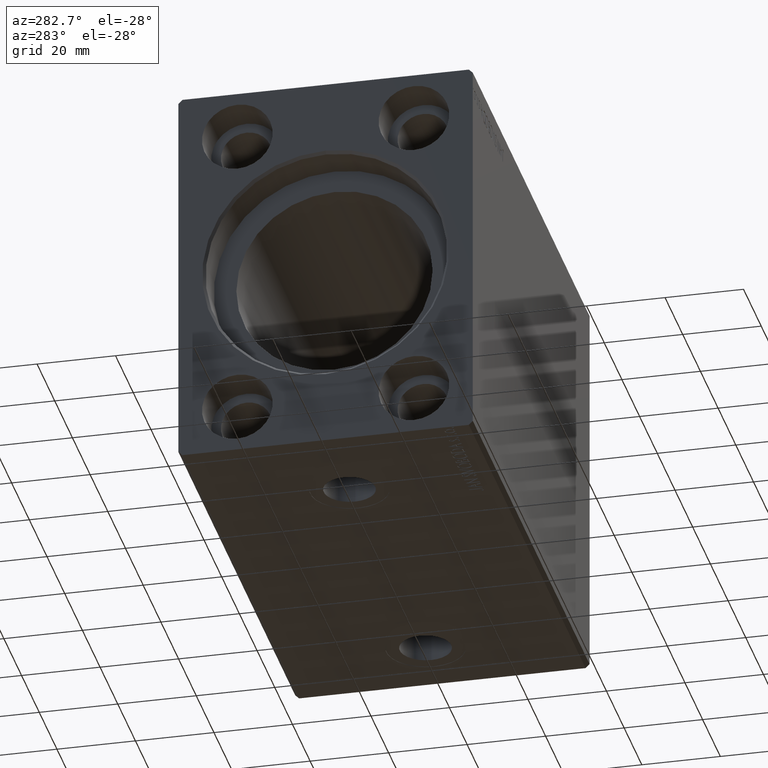
[diagram: clean part render]
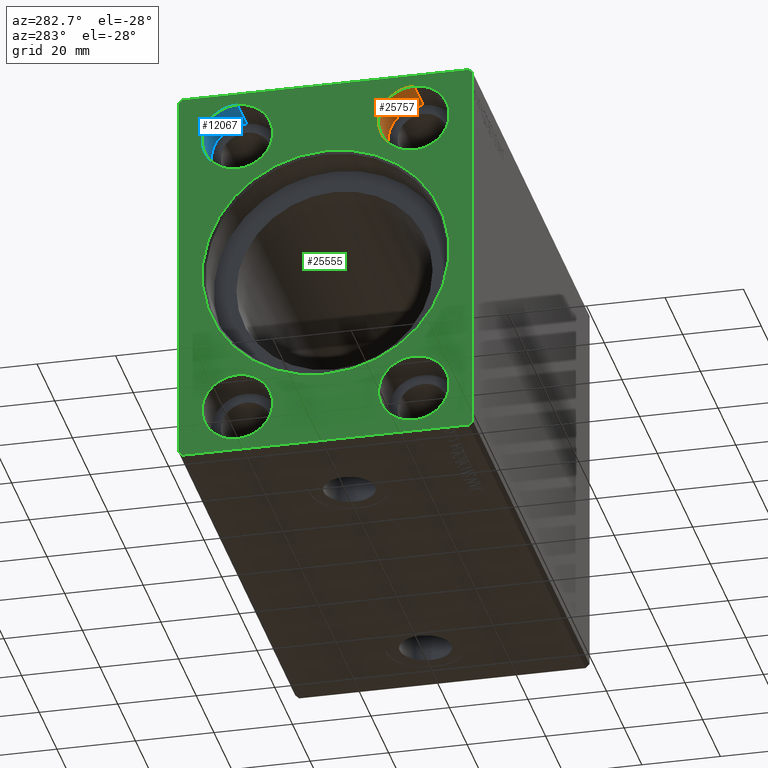
[diagram: same view with three faces highlighted in distinct colors, each labeled with its STEP entity id]
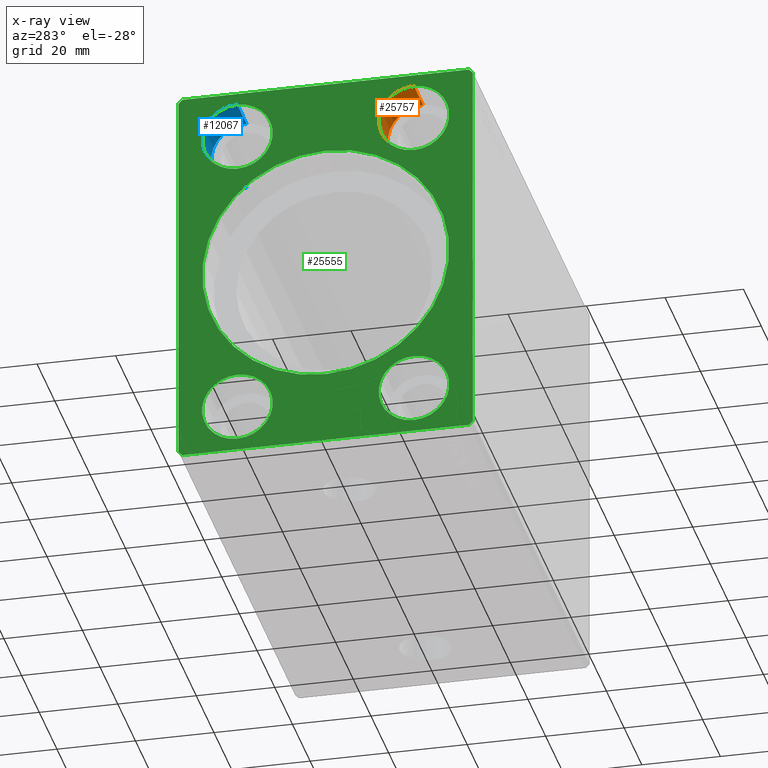
[diagram: x-ray of the same camera — body ghosted, the three highlighted faces saturated]
A machine part, auxiliary view with three faces highlighted in distinct colors.
The next image is the same camera in x-ray (body ghosted, the three faces saturated) — at least one of them is partly hidden behind the body in this view.
Their STEP definitions:

[orange] entity #25757 — the highlighted cylindrical surface (edge-blend (fillet) strip) has radius 9 mm, axis along (-1, -0, -0).
#1092 = VERTEX_POINT ( 'NONE', #17321 ) ;
#2110 = CARTESIAN_POINT ( 'NONE',  ( 10.33000000000000007, -22.50000000000000000, 47.00000000000000000 ) ) ;
#2202 = EDGE_CURVE ( 'NONE', #26670, #1092, #18201, .T. ) ;
#3875 = DIRECTION ( 'NONE',  ( -1.000000000000000000, 0.000000000000000000, 0.000000000000000000 ) ) ;
#4943 = DIRECTION ( 'NONE',  ( -1.000000000000000000, -0.000000000000000000, -0.000000000000000000 ) ) ;
#7109 = AXIS2_PLACEMENT_3D ( 'NONE', #10932, #3875, #40588 ) ;
#7344 = ORIENTED_EDGE ( 'NONE', *, *, #2202, .T. ) ;
#8591 = FACE_OUTER_BOUND ( 'NONE', #24076, .T. ) ;
#10932 = CARTESIAN_POINT ( 'NONE',  ( 10.33000000000000007, -22.50000000000000000, 38.00000000000000000 ) ) ;
#12466 = ORIENTED_EDGE ( 'NONE', *, *, #41853, .F. ) ;
#13252 = DIRECTION ( 'NONE',  ( -1.000000000000000000, -0.000000000000000000, -0.000000000000000000 ) ) ;
#13543 = VECTOR ( 'NONE', #13252, 1000.000000000000000 ) ;
#14458 = CARTESIAN_POINT ( 'NONE',  ( 0.000000000000000000, -22.50000000000000000, 38.00000000000000000 ) ) ;
#16058 = CARTESIAN_POINT ( 'NONE',  ( 10.33000000000000007, -22.50000000000000000, 28.99999999999999645 ) ) ;
#16316 = AXIS2_PLACEMENT_3D ( 'NONE', #14458, #40666, #24351 ) ;
#16426 = EDGE_CURVE ( 'NONE', #1092, #25883, #28704, .T. ) ;
#17076 = EDGE_CURVE ( 'NONE', #35137, #25883, #42270, .T. ) ;
#17321 = CARTESIAN_POINT ( 'NONE',  ( 0.000000000000000000, -22.50000000000000000, 47.00000000000000000 ) ) ;
#17785 = AXIS2_PLACEMENT_3D ( 'NONE', #34363, #4943, #34804 ) ;
#18201 = LINE ( 'NONE', #2110, #28372 ) ;
#21696 = CYLINDRICAL_SURFACE ( 'NONE', #17785, 9.000000000000001776 ) ;
#24076 = EDGE_LOOP ( 'NONE', ( #34747, #12466, #7344, #28697 ) ) ;
#24259 = CIRCLE ( 'NONE', #7109, 9.000000000000001776 ) ;
#24351 = DIRECTION ( 'NONE',  ( 0.000000000000000000, 0.000000000000000000, 1.000000000000000000 ) ) ;
#25757 = ADVANCED_FACE ( 'NONE', ( #8591 ), #21696, .F. ) ;
#25883 = VERTEX_POINT ( 'NONE', #36050 ) ;
#26670 = VERTEX_POINT ( 'NONE', #32972 ) ;
#28089 = DIRECTION ( 'NONE',  ( -1.000000000000000000, -0.000000000000000000, -0.000000000000000000 ) ) ;
#28372 = VECTOR ( 'NONE', #28089, 1000.000000000000000 ) ;
#28697 = ORIENTED_EDGE ( 'NONE', *, *, #16426, .T. ) ;
#28704 = CIRCLE ( 'NONE', #16316, 9.000000000000001776 ) ;
#32972 = CARTESIAN_POINT ( 'NONE',  ( 10.33000000000000007, -22.50000000000000000, 47.00000000000000000 ) ) ;
#34363 = CARTESIAN_POINT ( 'NONE',  ( 10.33000000000000007, -22.50000000000000000, 38.00000000000000000 ) ) ;
#34747 = ORIENTED_EDGE ( 'NONE', *, *, #17076, .F. ) ;
#34804 = DIRECTION ( 'NONE',  ( 0.000000000000000000, 0.000000000000000000, 1.000000000000000000 ) ) ;
#35137 = VERTEX_POINT ( 'NONE', #37414 ) ;
#36050 = CARTESIAN_POINT ( 'NONE',  ( 0.000000000000000000, -22.50000000000000000, 28.99999999999999645 ) ) ;
#37414 = CARTESIAN_POINT ( 'NONE',  ( 10.33000000000000007, -22.50000000000000000, 28.99999999999999645 ) ) ;
#40588 = DIRECTION ( 'NONE',  ( 0.000000000000000000, 0.000000000000000000, 1.000000000000000000 ) ) ;
#40666 = DIRECTION ( 'NONE',  ( -1.000000000000000000, 0.000000000000000000, 0.000000000000000000 ) ) ;
#41853 = EDGE_CURVE ( 'NONE', #26670, #35137, #24259, .T. ) ;
#42270 = LINE ( 'NONE', #16058, #13543 ) ;

[blue] entity #12067 — the highlighted cylindrical surface (edge-blend (fillet) strip) has radius 9 mm, axis along (-1, -0, -0).
#2074 = ORIENTED_EDGE ( 'NONE', *, *, #37213, .T. ) ;
#2250 = VECTOR ( 'NONE', #4916, 1000.000000000000000 ) ;
#2648 = CIRCLE ( 'NONE', #28712, 9.000000000000001776 ) ;
#2784 = CARTESIAN_POINT ( 'NONE',  ( 10.33000000000000007, 22.50000000000000000, 38.00000000000000000 ) ) ;
#3757 = CARTESIAN_POINT ( 'NONE',  ( 0.000000000000000000, 22.50000000000000000, 38.00000000000000000 ) ) ;
#4916 = DIRECTION ( 'NONE',  ( -1.000000000000000000, -0.000000000000000000, -0.000000000000000000 ) ) ;
#5374 = DIRECTION ( 'NONE',  ( 0.000000000000000000, 0.000000000000000000, -1.000000000000000000 ) ) ;
#5918 = LINE ( 'NONE', #16196, #28366 ) ;
#6365 = FACE_OUTER_BOUND ( 'NONE', #39857, .T. ) ;
#6629 = AXIS2_PLACEMENT_3D ( 'NONE', #16236, #9788, #31753 ) ;
#9788 = DIRECTION ( 'NONE',  ( -1.000000000000000000, -0.000000000000000000, -0.000000000000000000 ) ) ;
#10632 = ORIENTED_EDGE ( 'NONE', *, *, #40777, .F. ) ;
#10785 = VERTEX_POINT ( 'NONE', #38904 ) ;
#12067 = ADVANCED_FACE ( 'NONE', ( #6365 ), #32577, .F. ) ;
#14439 = ORIENTED_EDGE ( 'NONE', *, *, #20714, .T. ) ;
#15181 = CARTESIAN_POINT ( 'NONE',  ( 0.000000000000000000, 22.50000000000000000, 47.00000000000000000 ) ) ;
#15217 = VERTEX_POINT ( 'NONE', #27798 ) ;
#15784 = DIRECTION ( 'NONE',  ( -1.000000000000000000, -0.000000000000000000, -0.000000000000000000 ) ) ;
#16196 = CARTESIAN_POINT ( 'NONE',  ( 10.33000000000000007, 22.50000000000000000, 28.99999999999999645 ) ) ;
#16236 = CARTESIAN_POINT ( 'NONE',  ( 10.33000000000000007, 22.50000000000000000, 38.00000000000000000 ) ) ;
#20699 = DIRECTION ( 'NONE',  ( 0.000000000000000000, 0.000000000000000000, -1.000000000000000000 ) ) ;
#20714 = EDGE_CURVE ( 'NONE', #15217, #10785, #2648, .T. ) ;
#21229 = LINE ( 'NONE', #34339, #2250 ) ;
#26616 = EDGE_CURVE ( 'NONE', #39792, #36280, #37040, .T. ) ;
#27798 = CARTESIAN_POINT ( 'NONE',  ( 10.33000000000000007, 22.50000000000000000, 28.99999999999999645 ) ) ;
#28153 = AXIS2_PLACEMENT_3D ( 'NONE', #3757, #33179, #20699 ) ;
#28366 = VECTOR ( 'NONE', #15784, 1000.000000000000000 ) ;
#28712 = AXIS2_PLACEMENT_3D ( 'NONE', #2784, #41672, #5374 ) ;
#31753 = DIRECTION ( 'NONE',  ( 0.000000000000000000, 0.000000000000000000, 1.000000000000000000 ) ) ;
#32577 = CYLINDRICAL_SURFACE ( 'NONE', #6629, 9.000000000000001776 ) ;
#33179 = DIRECTION ( 'NONE',  ( 1.000000000000000000, -0.000000000000000000, -0.000000000000000000 ) ) ;
#33727 = CARTESIAN_POINT ( 'NONE',  ( 0.000000000000000000, 22.50000000000000000, 28.99999999999999645 ) ) ;
#34339 = CARTESIAN_POINT ( 'NONE',  ( 10.33000000000000007, 22.50000000000000000, 47.00000000000000000 ) ) ;
#36280 = VERTEX_POINT ( 'NONE', #15181 ) ;
#37040 = CIRCLE ( 'NONE', #28153, 9.000000000000001776 ) ;
#37213 = EDGE_CURVE ( 'NONE', #10785, #36280, #21229, .T. ) ;
#38071 = ORIENTED_EDGE ( 'NONE', *, *, #26616, .F. ) ;
#38904 = CARTESIAN_POINT ( 'NONE',  ( 10.33000000000000007, 22.50000000000000000, 47.00000000000000000 ) ) ;
#39792 = VERTEX_POINT ( 'NONE', #33727 ) ;
#39857 = EDGE_LOOP ( 'NONE', ( #10632, #14439, #2074, #38071 ) ) ;
#40777 = EDGE_CURVE ( 'NONE', #15217, #39792, #5918, .T. ) ;
#41672 = DIRECTION ( 'NONE',  ( 1.000000000000000000, -0.000000000000000000, -0.000000000000000000 ) ) ;

[green] entity #25555 — the highlighted planar face has unit normal (1, 0, 0).
#29 = DIRECTION ( 'NONE',  ( 1.000000000000000000, 0.000000000000000000, 0.000000000000000000 ) ) ;
#928 = CIRCLE ( 'NONE', #16015, 9.000000000000001776 ) ;
#1092 = VERTEX_POINT ( 'NONE', #17321 ) ;
#1205 = VERTEX_POINT ( 'NONE', #31535 ) ;
#1886 = DIRECTION ( 'NONE',  ( 0.000000000000000000, 1.000000000000000000, 0.000000000000000000 ) ) ;
#2752 = CARTESIAN_POINT ( 'NONE',  ( 0.000000000000000000, 0.000000000000000000, 0.000000000000000000 ) ) ;
#2834 = FACE_BOUND ( 'NONE', #41054, .T. ) ;
#3013 = CARTESIAN_POINT ( 'NONE',  ( 0.000000000000000000, 22.50000000000000000, -28.99999999999999645 ) ) ;
#3167 = DIRECTION ( 'NONE',  ( 1.000000000000000000, 0.000000000000000000, 0.000000000000000000 ) ) ;
#3757 = CARTESIAN_POINT ( 'NONE',  ( 0.000000000000000000, 22.50000000000000000, 38.00000000000000000 ) ) ;
#4023 = AXIS2_PLACEMENT_3D ( 'NONE', #4515, #5963, #25515 ) ;
#4515 = CARTESIAN_POINT ( 'NONE',  ( 0.000000000000000000, 0.000000000000000000, 0.000000000000000000 ) ) ;
#4533 = LINE ( 'NONE', #32964, #16417 ) ;
#5075 = DIRECTION ( 'NONE',  ( 0.000000000000000000, 0.000000000000000000, 1.000000000000000000 ) ) ;
#5403 = CIRCLE ( 'NONE', #21138, 9.000000000000001776 ) ;
#5436 = EDGE_CURVE ( 'NONE', #11991, #40769, #29155, .T. ) ;
#5963 = DIRECTION ( 'NONE',  ( 1.000000000000000000, 0.000000000000000000, 0.000000000000000000 ) ) ;
#6791 = DIRECTION ( 'NONE',  ( 0.000000000000000000, 0.000000000000000000, 1.000000000000000000 ) ) ;
#6899 = CIRCLE ( 'NONE', #41919, 9.000000000000001776 ) ;
#7033 = DIRECTION ( 'NONE',  ( 0.000000000000000000, -0.7071067811865474617, -0.7071067811865474617 ) ) ;
#8044 = CARTESIAN_POINT ( 'NONE',  ( 0.000000000000000000, -22.50000000000000000, -38.00000000000000000 ) ) ;
#8142 = ORIENTED_EDGE ( 'NONE', *, *, #16426, .F. ) ;
#8233 = CIRCLE ( 'NONE', #30185, 9.000000000000001776 ) ;
#8722 = CARTESIAN_POINT ( 'NONE',  ( 0.000000000000000000, 37.50000000000000711, -49.00000000000000000 ) ) ;
#9109 = AXIS2_PLACEMENT_3D ( 'NONE', #26441, #39539, #10099 ) ;
#9397 = CARTESIAN_POINT ( 'NONE',  ( 0.000000000000000000, 22.50000000000000000, -38.00000000000000000 ) ) ;
#9472 = ORIENTED_EDGE ( 'NONE', *, *, #20718, .T. ) ;
#9475 = FACE_BOUND ( 'NONE', #15731, .T. ) ;
#9576 = VECTOR ( 'NONE', #18789, 1000.000000000000000 ) ;
#9682 = FACE_BOUND ( 'NONE', #13507, .T. ) ;
#9885 = CARTESIAN_POINT ( 'NONE',  ( 0.000000000000000000, -37.50000000000001421, -49.00000000000000000 ) ) ;
#10099 = DIRECTION ( 'NONE',  ( 0.000000000000000000, 0.000000000000000000, 1.000000000000000000 ) ) ;
#10374 = VERTEX_POINT ( 'NONE', #9885 ) ;
#10840 = VERTEX_POINT ( 'NONE', #26221 ) ;
#10873 = CIRCLE ( 'NONE', #4023, 31.45000000000003482 ) ;
#10980 = VERTEX_POINT ( 'NONE', #16281 ) ;
#11641 = CARTESIAN_POINT ( 'NONE',  ( 0.000000000000000000, -37.50000000000001421, -49.00000000000000000 ) ) ;
#11719 = ORIENTED_EDGE ( 'NONE', *, *, #25173, .F. ) ;
#11913 = DIRECTION ( 'NONE',  ( 1.000000000000000000, -0.000000000000000000, -0.000000000000000000 ) ) ;
#11991 = VERTEX_POINT ( 'NONE', #19053 ) ;
#12477 = EDGE_LOOP ( 'NONE', ( #8142, #41377 ) ) ;
#12653 = LINE ( 'NONE', #28358, #19241 ) ;
#12654 = CARTESIAN_POINT ( 'NONE',  ( 0.000000000000000000, 36.50000000000000711, 50.00000000000000000 ) ) ;
#13507 = EDGE_LOOP ( 'NONE', ( #16929, #38255 ) ) ;
#13822 = ORIENTED_EDGE ( 'NONE', *, *, #21833, .T. ) ;
#14229 = AXIS2_PLACEMENT_3D ( 'NONE', #2752, #3167, #16046 ) ;
#14458 = CARTESIAN_POINT ( 'NONE',  ( 0.000000000000000000, -22.50000000000000000, 38.00000000000000000 ) ) ;
#14793 = ORIENTED_EDGE ( 'NONE', *, *, #25418, .F. ) ;
#14974 = LINE ( 'NONE', #18409, #26774 ) ;
#15181 = CARTESIAN_POINT ( 'NONE',  ( 0.000000000000000000, 22.50000000000000000, 47.00000000000000000 ) ) ;
#15731 = EDGE_LOOP ( 'NONE', ( #9472, #36272 ) ) ;
#15881 = ORIENTED_EDGE ( 'NONE', *, *, #26859, .T. ) ;
#15923 = FACE_OUTER_BOUND ( 'NONE', #26692, .T. ) ;
#16015 = AXIS2_PLACEMENT_3D ( 'NONE', #9397, #32385, #6791 ) ;
#16046 = DIRECTION ( 'NONE',  ( 0.000000000000000000, 0.000000000000000000, -1.000000000000000000 ) ) ;
#16281 = CARTESIAN_POINT ( 'NONE',  ( -1.084202172485504434E-16, 0.000000000000000000, 31.45000000000003482 ) ) ;
#16316 = AXIS2_PLACEMENT_3D ( 'NONE', #14458, #40666, #24351 ) ;
#16417 = VECTOR ( 'NONE', #37618, 1000.000000000000114 ) ;
#16426 = EDGE_CURVE ( 'NONE', #1092, #25883, #28704, .T. ) ;
#16655 = CARTESIAN_POINT ( 'NONE',  ( 0.000000000000000000, 36.50000000000000711, -50.00000000000000000 ) ) ;
#16929 = ORIENTED_EDGE ( 'NONE', *, *, #18780, .F. ) ;
#17258 = VERTEX_POINT ( 'NONE', #18179 ) ;
#17321 = CARTESIAN_POINT ( 'NONE',  ( 0.000000000000000000, -22.50000000000000000, 47.00000000000000000 ) ) ;
#17380 = EDGE_CURVE ( 'NONE', #10840, #20783, #4533, .T. ) ;
#17960 = CARTESIAN_POINT ( 'NONE',  ( 0.000000000000000000, -22.50000000000000000, 38.00000000000000000 ) ) ;
#18179 = CARTESIAN_POINT ( 'NONE',  ( 0.000000000000000000, -22.50000000000000000, -47.00000000000000000 ) ) ;
#18409 = CARTESIAN_POINT ( 'NONE',  ( 0.000000000000000000, -36.50000000000000711, -50.00000000000000000 ) ) ;
#18466 = CARTESIAN_POINT ( 'NONE',  ( 0.000000000000000000, 22.50000000000000000, 38.00000000000000000 ) ) ;
#18497 = ORIENTED_EDGE ( 'NONE', *, *, #28398, .T. ) ;
#18521 = DIRECTION ( 'NONE',  ( 0.000000000000000000, 0.7071067811865500152, -0.7071067811865451302 ) ) ;
#18780 = EDGE_CURVE ( 'NONE', #22808, #39431, #24182, .T. ) ;
#18789 = DIRECTION ( 'NONE',  ( 0.000000000000000000, -1.000000000000000000, -1.901066822988281457E-16 ) ) ;
#19053 = CARTESIAN_POINT ( 'NONE',  ( 0.000000000000000000, 36.50000000000000711, -50.00000000000000000 ) ) ;
#19070 = CIRCLE ( 'NONE', #14229, 31.45000000000003482 ) ;
#19098 = DIRECTION ( 'NONE',  ( 0.000000000000000000, 0.000000000000000000, -1.000000000000000000 ) ) ;
#19241 = VECTOR ( 'NONE', #28989, 1000.000000000000000 ) ;
#20155 = EDGE_CURVE ( 'NONE', #10980, #37389, #19070, .T. ) ;
#20699 = DIRECTION ( 'NONE',  ( 0.000000000000000000, 0.000000000000000000, -1.000000000000000000 ) ) ;
#20718 = EDGE_CURVE ( 'NONE', #36280, #39792, #5403, .T. ) ;
#20783 = VERTEX_POINT ( 'NONE', #12654 ) ;
#21138 = AXIS2_PLACEMENT_3D ( 'NONE', #18466, #25351, #19098 ) ;
#21408 = DIRECTION ( 'NONE',  ( 0.000000000000000000, 0.000000000000000000, 1.000000000000000000 ) ) ;
#21833 = EDGE_CURVE ( 'NONE', #37389, #10980, #10873, .T. ) ;
#22011 = CARTESIAN_POINT ( 'NONE',  ( 0.000000000000000000, 36.50000000000000711, 50.00000000000000000 ) ) ;
#22582 = CARTESIAN_POINT ( 'NONE',  ( 0.000000000000000000, 0.000000000000000000, 0.000000000000000000 ) ) ;
#22616 = AXIS2_PLACEMENT_3D ( 'NONE', #22582, #29, #35678 ) ;
#22758 = ORIENTED_EDGE ( 'NONE', *, *, #25985, .F. ) ;
#22808 = VERTEX_POINT ( 'NONE', #3013 ) ;
#23537 = VERTEX_POINT ( 'NONE', #42174 ) ;
#23727 = ORIENTED_EDGE ( 'NONE', *, *, #20155, .T. ) ;
#23781 = CARTESIAN_POINT ( 'NONE',  ( 0.000000000000000000, -36.50000000000001421, 49.99999999999998579 ) ) ;
#24017 = CIRCLE ( 'NONE', #39770, 9.000000000000001776 ) ;
#24182 = CIRCLE ( 'NONE', #9109, 9.000000000000001776 ) ;
#24351 = DIRECTION ( 'NONE',  ( 0.000000000000000000, 0.000000000000000000, 1.000000000000000000 ) ) ;
#24731 = VERTEX_POINT ( 'NONE', #33500 ) ;
#25021 = DIRECTION ( 'NONE',  ( 0.000000000000000000, 0.000000000000000000, -1.000000000000000000 ) ) ;
#25140 = ORIENTED_EDGE ( 'NONE', *, *, #41528, .F. ) ;
#25173 = EDGE_CURVE ( 'NONE', #20783, #31719, #25242, .T. ) ;
#25242 = LINE ( 'NONE', #22011, #9576 ) ;
#25351 = DIRECTION ( 'NONE',  ( 1.000000000000000000, -0.000000000000000000, -0.000000000000000000 ) ) ;
#25396 = VECTOR ( 'NONE', #18521, 1000.000000000000114 ) ;
#25418 = EDGE_CURVE ( 'NONE', #10374, #24731, #41081, .T. ) ;
#25515 = DIRECTION ( 'NONE',  ( 0.000000000000000000, 0.000000000000000000, -1.000000000000000000 ) ) ;
#25555 = ADVANCED_FACE ( 'NONE', ( #32258, #9682, #2834, #15923, #29457, #9475 ), #35892, .F. ) ;
#25883 = VERTEX_POINT ( 'NONE', #36050 ) ;
#25985 = EDGE_CURVE ( 'NONE', #31719, #1205, #27014, .T. ) ;
#26175 = DIRECTION ( 'NONE',  ( 1.000000000000000000, -0.000000000000000000, -0.000000000000000000 ) ) ;
#26221 = CARTESIAN_POINT ( 'NONE',  ( 0.000000000000000000, 37.50000000000000711, 49.00000000000000000 ) ) ;
#26332 = EDGE_CURVE ( 'NONE', #25883, #1092, #8233, .T. ) ;
#26441 = CARTESIAN_POINT ( 'NONE',  ( 0.000000000000000000, 22.50000000000000000, -38.00000000000000000 ) ) ;
#26616 = EDGE_CURVE ( 'NONE', #39792, #36280, #37040, .T. ) ;
#26692 = EDGE_LOOP ( 'NONE', ( #37411, #25140, #31492, #38836, #14793, #36946, #22758, #11719 ) ) ;
#26774 = VECTOR ( 'NONE', #1886, 1000.000000000000000 ) ;
#26859 = EDGE_CURVE ( 'NONE', #17258, #23537, #24017, .T. ) ;
#27014 = LINE ( 'NONE', #23781, #35672 ) ;
#27193 = CARTESIAN_POINT ( 'NONE',  ( -1.084202172485504434E-16, 3.851514183318429560E-15, -31.45000000000003482 ) ) ;
#27318 = EDGE_CURVE ( 'NONE', #24731, #11991, #14974, .T. ) ;
#27855 = DIRECTION ( 'NONE',  ( -1.000000000000000000, 0.000000000000000000, 0.000000000000000000 ) ) ;
#28153 = AXIS2_PLACEMENT_3D ( 'NONE', #3757, #33179, #20699 ) ;
#28358 = CARTESIAN_POINT ( 'NONE',  ( 0.000000000000000000, -37.50000000000001421, 48.99999999999998579 ) ) ;
#28398 = EDGE_CURVE ( 'NONE', #23537, #17258, #6899, .T. ) ;
#28704 = CIRCLE ( 'NONE', #16316, 9.000000000000001776 ) ;
#28989 = DIRECTION ( 'NONE',  ( 0.000000000000000000, 0.000000000000000000, -1.000000000000000000 ) ) ;
#29063 = VECTOR ( 'NONE', #5075, 1000.000000000000000 ) ;
#29155 = LINE ( 'NONE', #16655, #30456 ) ;
#29457 = FACE_BOUND ( 'NONE', #32472, .T. ) ;
#30185 = AXIS2_PLACEMENT_3D ( 'NONE', #17960, #27855, #21408 ) ;
#30456 = VECTOR ( 'NONE', #42460, 1000.000000000000114 ) ;
#31380 = EDGE_CURVE ( 'NONE', #1205, #10374, #12653, .T. ) ;
#31492 = ORIENTED_EDGE ( 'NONE', *, *, #5436, .F. ) ;
#31535 = CARTESIAN_POINT ( 'NONE',  ( 0.000000000000000000, -37.50000000000001421, 48.99999999999998579 ) ) ;
#31719 = VERTEX_POINT ( 'NONE', #39875 ) ;
#32258 = FACE_BOUND ( 'NONE', #12477, .T. ) ;
#32385 = DIRECTION ( 'NONE',  ( -1.000000000000000000, 0.000000000000000000, 0.000000000000000000 ) ) ;
#32472 = EDGE_LOOP ( 'NONE', ( #18497, #15881 ) ) ;
#32964 = CARTESIAN_POINT ( 'NONE',  ( 0.000000000000000000, 37.50000000000000711, 49.00000000000000000 ) ) ;
#33179 = DIRECTION ( 'NONE',  ( 1.000000000000000000, -0.000000000000000000, -0.000000000000000000 ) ) ;
#33500 = CARTESIAN_POINT ( 'NONE',  ( 0.000000000000000000, -36.50000000000000711, -50.00000000000000000 ) ) ;
#33727 = CARTESIAN_POINT ( 'NONE',  ( 0.000000000000000000, 22.50000000000000000, 28.99999999999999645 ) ) ;
#34497 = LINE ( 'NONE', #8722, #29063 ) ;
#35672 = VECTOR ( 'NONE', #7033, 1000.000000000000114 ) ;
#35678 = DIRECTION ( 'NONE',  ( 0.000000000000000000, 0.000000000000000000, -1.000000000000000000 ) ) ;
#35892 = PLANE ( 'NONE',  #22616 ) ;
#36050 = CARTESIAN_POINT ( 'NONE',  ( 0.000000000000000000, -22.50000000000000000, 28.99999999999999645 ) ) ;
#36272 = ORIENTED_EDGE ( 'NONE', *, *, #26616, .T. ) ;
#36280 = VERTEX_POINT ( 'NONE', #15181 ) ;
#36946 = ORIENTED_EDGE ( 'NONE', *, *, #31380, .F. ) ;
#37040 = CIRCLE ( 'NONE', #28153, 9.000000000000001776 ) ;
#37389 = VERTEX_POINT ( 'NONE', #27193 ) ;
#37411 = ORIENTED_EDGE ( 'NONE', *, *, #17380, .F. ) ;
#37618 = DIRECTION ( 'NONE',  ( 0.000000000000000000, -0.7071067811865474617, 0.7071067811865474617 ) ) ;
#38255 = ORIENTED_EDGE ( 'NONE', *, *, #41264, .F. ) ;
#38836 = ORIENTED_EDGE ( 'NONE', *, *, #27318, .F. ) ;
#39276 = DIRECTION ( 'NONE',  ( 0.000000000000000000, 0.000000000000000000, -1.000000000000000000 ) ) ;
#39396 = CARTESIAN_POINT ( 'NONE',  ( 0.000000000000000000, 37.50000000000000711, -49.00000000000000000 ) ) ;
#39431 = VERTEX_POINT ( 'NONE', #42043 ) ;
#39539 = DIRECTION ( 'NONE',  ( -1.000000000000000000, 0.000000000000000000, 0.000000000000000000 ) ) ;
#39770 = AXIS2_PLACEMENT_3D ( 'NONE', #41346, #11913, #25021 ) ;
#39792 = VERTEX_POINT ( 'NONE', #33727 ) ;
#39875 = CARTESIAN_POINT ( 'NONE',  ( 0.000000000000000000, -36.50000000000001421, 49.99999999999998579 ) ) ;
#40666 = DIRECTION ( 'NONE',  ( -1.000000000000000000, 0.000000000000000000, 0.000000000000000000 ) ) ;
#40769 = VERTEX_POINT ( 'NONE', #39396 ) ;
#41054 = EDGE_LOOP ( 'NONE', ( #23727, #13822 ) ) ;
#41081 = LINE ( 'NONE', #11641, #25396 ) ;
#41264 = EDGE_CURVE ( 'NONE', #39431, #22808, #928, .T. ) ;
#41346 = CARTESIAN_POINT ( 'NONE',  ( 0.000000000000000000, -22.50000000000000000, -38.00000000000000000 ) ) ;
#41377 = ORIENTED_EDGE ( 'NONE', *, *, #26332, .F. ) ;
#41528 = EDGE_CURVE ( 'NONE', #40769, #10840, #34497, .T. ) ;
#41919 = AXIS2_PLACEMENT_3D ( 'NONE', #8044, #26175, #39276 ) ;
#42043 = CARTESIAN_POINT ( 'NONE',  ( 0.000000000000000000, 22.50000000000000000, -47.00000000000000000 ) ) ;
#42174 = CARTESIAN_POINT ( 'NONE',  ( 0.000000000000000000, -22.50000000000000000, -28.99999999999999645 ) ) ;
#42460 = DIRECTION ( 'NONE',  ( 0.000000000000000000, 0.7071067811865474617, 0.7071067811865474617 ) ) ;